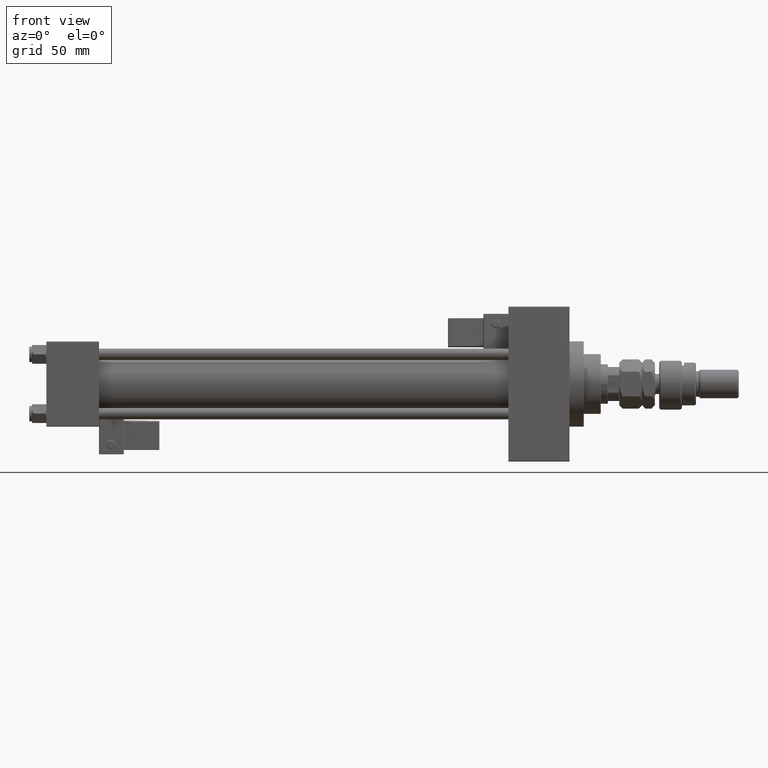
[diagram: clean part render]
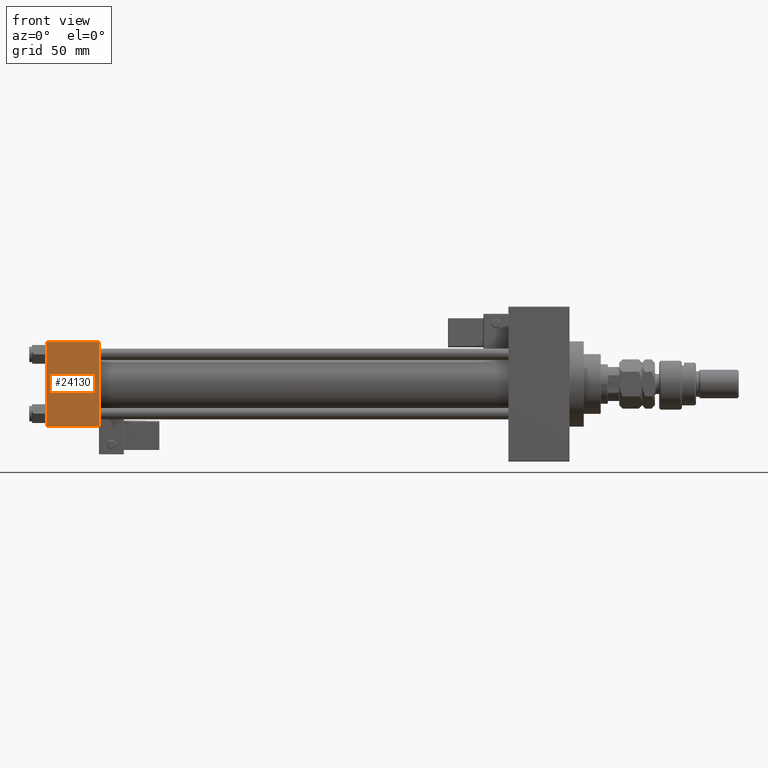
[diagram: same view with one face highlighted and labeled with its STEP entity id]
A machine part, front view. The second image highlights one B-rep face of the part: STEP entity #24130.
In plain terms, the highlighted planar face has unit normal (0, 1, 0).
Its self-contained STEP definition (entity closure, byte-faithful):
#93 = LINE ( 'NONE', #16287, #29325 ) ;
#117 = VECTOR ( 'NONE', #11227, 1000.000000000000000 ) ;
#528 = CARTESIAN_POINT ( 'NONE',  ( 0.000000000000000000, -30.00000000000000000, -29.50000000000001776 ) ) ;
#2025 = CARTESIAN_POINT ( 'NONE',  ( 37.00000000000000000, -30.00000000000000000, -29.50000000000001776 ) ) ;
#4464 = LINE ( 'NONE', #21196, #22974 ) ;
#5067 = CARTESIAN_POINT ( 'NONE',  ( 37.00000000000000000, -30.00000000000000000, 29.49999999999999289 ) ) ;
#6356 = VECTOR ( 'NONE', #18029, 1000.000000000000000 ) ;
#6587 = DIRECTION ( 'NONE',  ( -0.000000000000000000, 1.000000000000000000, 0.000000000000000000 ) ) ;
#9560 = VERTEX_POINT ( 'NONE', #528 ) ;
#11227 = DIRECTION ( 'NONE',  ( 1.000000000000000000, 0.000000000000000000, 0.000000000000000000 ) ) ;
#11498 = LINE ( 'NONE', #44197, #117 ) ;
#14957 = EDGE_CURVE ( 'NONE', #16766, #18259, #93, .T. ) ;
#15481 = ORIENTED_EDGE ( 'NONE', *, *, #49629, .T. ) ;
#16287 = CARTESIAN_POINT ( 'NONE',  ( 37.00000000000000000, -30.00000000000000000, 29.49999999999999289 ) ) ;
#16766 = VERTEX_POINT ( 'NONE', #5067 ) ;
#17892 = CARTESIAN_POINT ( 'NONE',  ( 0.000000000000000000, -30.00000000000000000, 29.49999999999999289 ) ) ;
#18029 = DIRECTION ( 'NONE',  ( 0.000000000000000000, 0.000000000000000000, -1.000000000000000000 ) ) ;
#18259 = VERTEX_POINT ( 'NONE', #17892 ) ;
#21196 = CARTESIAN_POINT ( 'NONE',  ( 37.00000000000000000, -30.00000000000000000, 29.99999999999999289 ) ) ;
#22974 = VECTOR ( 'NONE', #45131, 1000.000000000000000 ) ;
#24130 = ADVANCED_FACE ( 'NONE', ( #50990 ), #43018, .F. ) ;
#25467 = EDGE_LOOP ( 'NONE', ( #41426, #15481, #48370, #35663 ) ) ;
#27706 = EDGE_CURVE ( 'NONE', #18259, #9560, #38756, .T. ) ;
#28528 = DIRECTION ( 'NONE',  ( -1.000000000000000000, 0.000000000000000000, 0.000000000000000000 ) ) ;
#29325 = VECTOR ( 'NONE', #28528, 1000.000000000000000 ) ;
#35033 = DIRECTION ( 'NONE',  ( 0.000000000000000000, -0.000000000000000000, 1.000000000000000000 ) ) ;
#35663 = ORIENTED_EDGE ( 'NONE', *, *, #14957, .T. ) ;
#38541 = VERTEX_POINT ( 'NONE', #2025 ) ;
#38756 = LINE ( 'NONE', #45963, #6356 ) ;
#39335 = AXIS2_PLACEMENT_3D ( 'NONE', #42757, #6587, #35033 ) ;
#41426 = ORIENTED_EDGE ( 'NONE', *, *, #27706, .T. ) ;
#41978 = EDGE_CURVE ( 'NONE', #16766, #38541, #4464, .T. ) ;
#42757 = CARTESIAN_POINT ( 'NONE',  ( 37.00000000000000000, -30.00000000000000000, 29.99999999999999289 ) ) ;
#43018 = PLANE ( 'NONE',  #39335 ) ;
#44197 = CARTESIAN_POINT ( 'NONE',  ( 37.00000000000000000, -30.00000000000000000, -29.50000000000001776 ) ) ;
#45131 = DIRECTION ( 'NONE',  ( 0.000000000000000000, 0.000000000000000000, -1.000000000000000000 ) ) ;
#45963 = CARTESIAN_POINT ( 'NONE',  ( 0.000000000000000000, -30.00000000000000000, 29.99999999999999289 ) ) ;
#48370 = ORIENTED_EDGE ( 'NONE', *, *, #41978, .F. ) ;
#49629 = EDGE_CURVE ( 'NONE', #9560, #38541, #11498, .T. ) ;
#50990 = FACE_OUTER_BOUND ( 'NONE', #25467, .T. ) ;